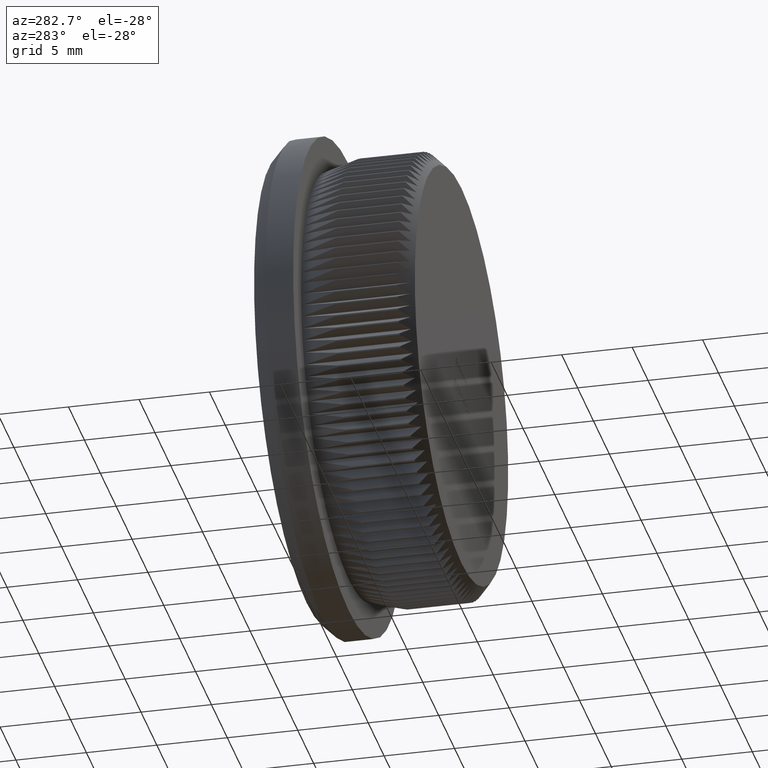
[diagram: clean part render]
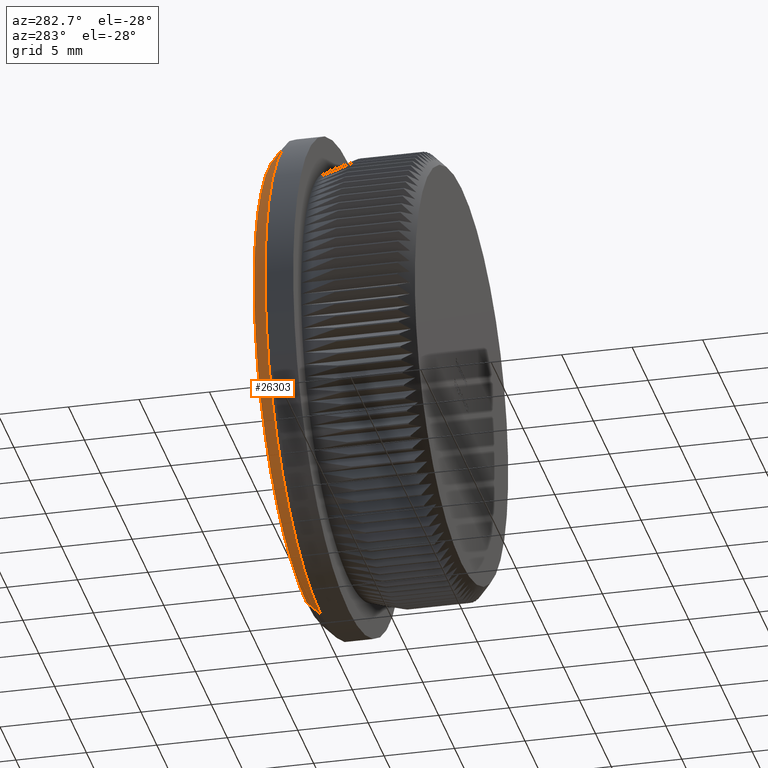
[diagram: same view with one face highlighted and labeled with its STEP entity id]
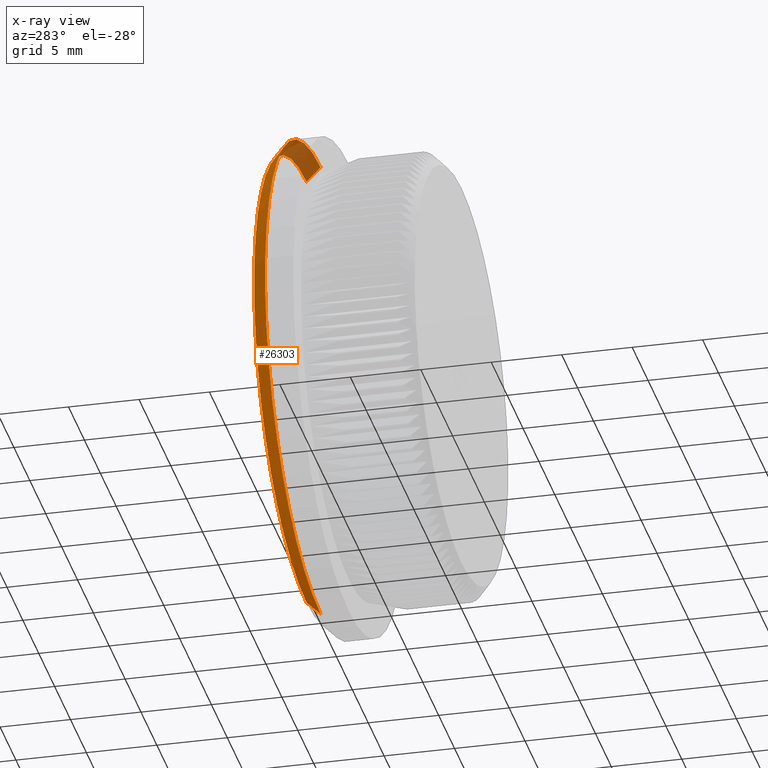
[diagram: x-ray of the same camera — body ghosted, the highlighted face saturated]
A machine part, auxiliary view. The second image highlights one B-rep face of the part: STEP entity #26303.
The next image is the same camera in x-ray: the body ghosted, the highlighted face saturated — about 13% of this face is hidden behind the body in this view.
In plain terms, the highlighted conical surface has half-angle 45 deg.
Its self-contained STEP definition (entity closure, byte-faithful):
#40 = VERTEX_POINT ( 'NONE', #6003 ) ;
#696 = DIRECTION ( 'NONE',  ( 0.0000000000000000000, -0.7071067811865450200, -0.7071067811865500200 ) ) ;
#777 = CARTESIAN_POINT ( 'NONE',  ( 0.0000000000000000000, 10.00000000000000200, -17.50000000000000000 ) ) ;
#821 = LINE ( 'NONE', #25225, #22978 ) ;
#1166 = AXIS2_PLACEMENT_3D ( 'NONE', #26774, #20206, #24523 ) ;
#1717 = VECTOR ( 'NONE', #696, 1000.000000000000000 ) ;
#1794 = CONICAL_SURFACE ( 'NONE', #1166, 17.50000000000000000, 0.7853981633974518300 ) ;
#1946 = CARTESIAN_POINT ( 'NONE',  ( 2.143131898507868200E-015, 10.00000000000000200, 17.50000000000000000 ) ) ;
#2603 = ORIENTED_EDGE ( 'NONE', *, *, #25597, .F. ) ;
#2828 = CIRCLE ( 'NONE', #21840, 16.49999999999999600 ) ;
#5349 = DIRECTION ( 'NONE',  ( -0.0000000000000000000, -1.000000000000000000, -0.0000000000000000000 ) ) ;
#5425 = DIRECTION ( 'NONE',  ( 0.0000000000000000000, 0.0000000000000000000, 1.000000000000000000 ) ) ;
#6003 = CARTESIAN_POINT ( 'NONE',  ( 0.0000000000000000000, 11.00000000000000000, -16.49999999999999600 ) ) ;
#6678 = VERTEX_POINT ( 'NONE', #1946 ) ;
#6908 = AXIS2_PLACEMENT_3D ( 'NONE', #15938, #5349, #20321 ) ;
#7552 = ORIENTED_EDGE ( 'NONE', *, *, #26238, .F. ) ;
#7813 = ORIENTED_EDGE ( 'NONE', *, *, #19678, .F. ) ;
#10732 = CIRCLE ( 'NONE', #6908, 17.50000000000000000 ) ;
#12854 = VERTEX_POINT ( 'NONE', #21363 ) ;
#13248 = FACE_OUTER_BOUND ( 'NONE', #21431, .T. ) ;
#15175 = LINE ( 'NONE', #777, #1717 ) ;
#15938 = CARTESIAN_POINT ( 'NONE',  ( 0.0000000000000000000, 10.00000000000000200, 0.0000000000000000000 ) ) ;
#16924 = EDGE_CURVE ( 'NONE', #40, #18836, #15175, .T. ) ;
#18336 = CARTESIAN_POINT ( 'NONE',  ( 0.0000000000000000000, 10.00000000000000200, -17.50000000000000000 ) ) ;
#18836 = VERTEX_POINT ( 'NONE', #18336 ) ;
#19678 = EDGE_CURVE ( 'NONE', #6678, #18836, #10732, .T. ) ;
#20039 = CARTESIAN_POINT ( 'NONE',  ( 0.0000000000000000000, 11.00000000000000000, 0.0000000000000000000 ) ) ;
#20206 = DIRECTION ( 'NONE',  ( -0.0000000000000000000, -1.000000000000000000, -0.0000000000000000000 ) ) ;
#20321 = DIRECTION ( 'NONE',  ( 0.0000000000000000000, 0.0000000000000000000, 1.000000000000000000 ) ) ;
#21363 = CARTESIAN_POINT ( 'NONE',  ( 2.081899558550500300E-015, 11.00000000000000000, 16.49999999999999600 ) ) ;
#21431 = EDGE_LOOP ( 'NONE', ( #2603, #7552, #26511, #7813 ) ) ;
#21840 = AXIS2_PLACEMENT_3D ( 'NONE', #20039, #24891, #5425 ) ;
#22978 = VECTOR ( 'NONE', #25514, 1000.000000000000000 ) ;
#24523 = DIRECTION ( 'NONE',  ( 0.0000000000000000000, 0.0000000000000000000, -1.000000000000000000 ) ) ;
#24891 = DIRECTION ( 'NONE',  ( 0.0000000000000000000, 1.000000000000000000, 0.0000000000000000000 ) ) ;
#25225 = CARTESIAN_POINT ( 'NONE',  ( 2.143131898507868200E-015, 10.00000000000000200, 17.50000000000000000 ) ) ;
#25514 = DIRECTION ( 'NONE',  ( 8.659560562354963700E-017, -0.7071067811865450200, 0.7071067811865500200 ) ) ;
#25597 = EDGE_CURVE ( 'NONE', #12854, #6678, #821, .T. ) ;
#26238 = EDGE_CURVE ( 'NONE', #40, #12854, #2828, .T. ) ;
#26303 = ADVANCED_FACE ( 'NONE', ( #13248 ), #1794, .T. ) ;
#26511 = ORIENTED_EDGE ( 'NONE', *, *, #16924, .T. ) ;
#26774 = CARTESIAN_POINT ( 'NONE',  ( 0.0000000000000000000, 10.00000000000000200, 0.0000000000000000000 ) ) ;